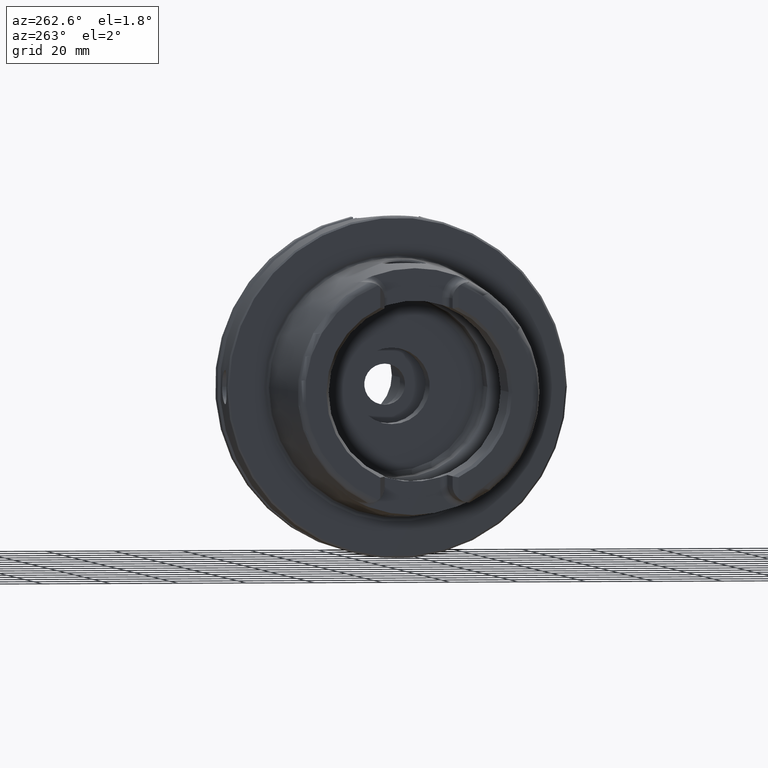
[diagram: clean part render]
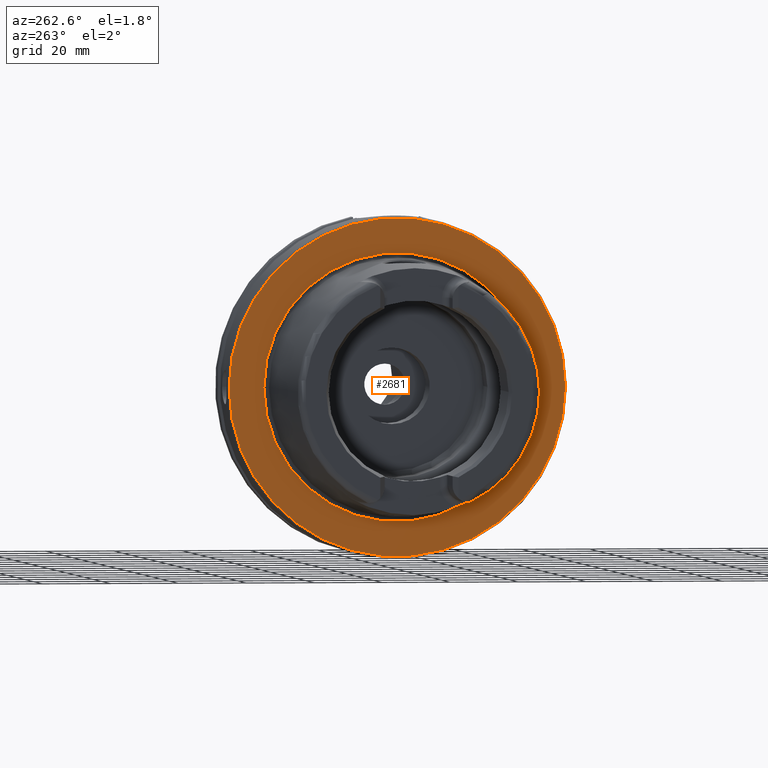
[diagram: same view with one face highlighted and labeled with its STEP entity id]
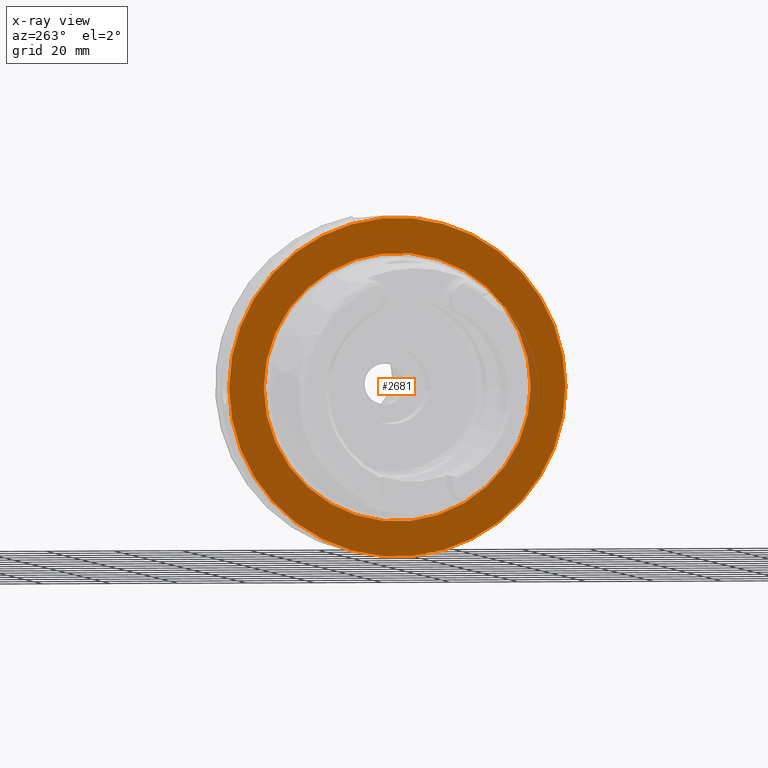
[diagram: x-ray of the same camera — body ghosted, the highlighted face saturated]
A machine part, auxiliary view. The second image highlights one B-rep face of the part: STEP entity #2681.
The next image is the same camera in x-ray: the body ghosted, the highlighted face saturated — about 5% of this face is hidden behind the body in this view.
In plain terms, the highlighted planar face has unit normal (-1, 0, 0).
Its self-contained STEP definition (entity closure, byte-faithful):
#143=FACE_BOUND('',#704,.T.);
#179=PLANE('',#3067);
#557=FACE_OUTER_BOUND('',#703,.T.);
#703=EDGE_LOOP('',(#2468,#2469));
#704=EDGE_LOOP('',(#2470,#2471));
#937=CIRCLE('',#3065,39.2747800249997);
#938=CIRCLE('',#3066,39.2747800249997);
#939=CIRCLE('',#3068,49.5);
#940=CIRCLE('',#3069,49.5);
#1239=VERTEX_POINT('',#5660);
#1240=VERTEX_POINT('',#5662);
#1241=VERTEX_POINT('',#5666);
#1242=VERTEX_POINT('',#5667);
#1655=EDGE_CURVE('',#1240,#1239,#937,.T.);
#1656=EDGE_CURVE('',#1239,#1240,#938,.T.);
#1657=EDGE_CURVE('',#1241,#1242,#939,.T.);
#1658=EDGE_CURVE('',#1242,#1241,#940,.T.);
#2468=ORIENTED_EDGE('',*,*,#1657,.F.);
#2469=ORIENTED_EDGE('',*,*,#1658,.F.);
#2470=ORIENTED_EDGE('',*,*,#1655,.T.);
#2471=ORIENTED_EDGE('',*,*,#1656,.T.);
#2681=ADVANCED_FACE('',(#557,#143),#179,.T.);
#3065=AXIS2_PLACEMENT_3D('',#5663,#3908,#3909);
#3066=AXIS2_PLACEMENT_3D('',#5664,#3910,#3911);
#3067=AXIS2_PLACEMENT_3D('',#5665,#3912,#3913);
#3068=AXIS2_PLACEMENT_3D('',#5668,#3914,#3915);
#3069=AXIS2_PLACEMENT_3D('',#5669,#3916,#3917);
#3908=DIRECTION('center_axis',(1.,0.,0.));
#3909=DIRECTION('ref_axis',(0.,0.,-1.));
#3910=DIRECTION('center_axis',(1.,0.,0.));
#3911=DIRECTION('ref_axis',(0.,0.,-1.));
#3912=DIRECTION('center_axis',(-1.,0.,0.));
#3913=DIRECTION('ref_axis',(0.,0.,1.));
#3914=DIRECTION('center_axis',(1.,0.,0.));
#3915=DIRECTION('ref_axis',(0.,0.,-1.));
#3916=DIRECTION('center_axis',(1.,0.,0.));
#3917=DIRECTION('ref_axis',(0.,0.,-1.));
#5660=CARTESIAN_POINT('',(-1.11889664200504E-15,-39.2747800249997,-4.80977336448322E-15));
#5662=CARTESIAN_POINT('',(0.,39.2747800249997,0.));
#5663=CARTESIAN_POINT('Origin',(0.,0.,0.));
#5664=CARTESIAN_POINT('Origin',(0.,0.,0.));
#5665=CARTESIAN_POINT('Origin',(0.,49.5,0.));
#5666=CARTESIAN_POINT('',(0.,49.5,0.));
#5667=CARTESIAN_POINT('',(1.2490009027033E-15,-49.5,-6.0620016557794E-15));
#5668=CARTESIAN_POINT('Origin',(0.,0.,0.));
#5669=CARTESIAN_POINT('Origin',(0.,0.,0.));